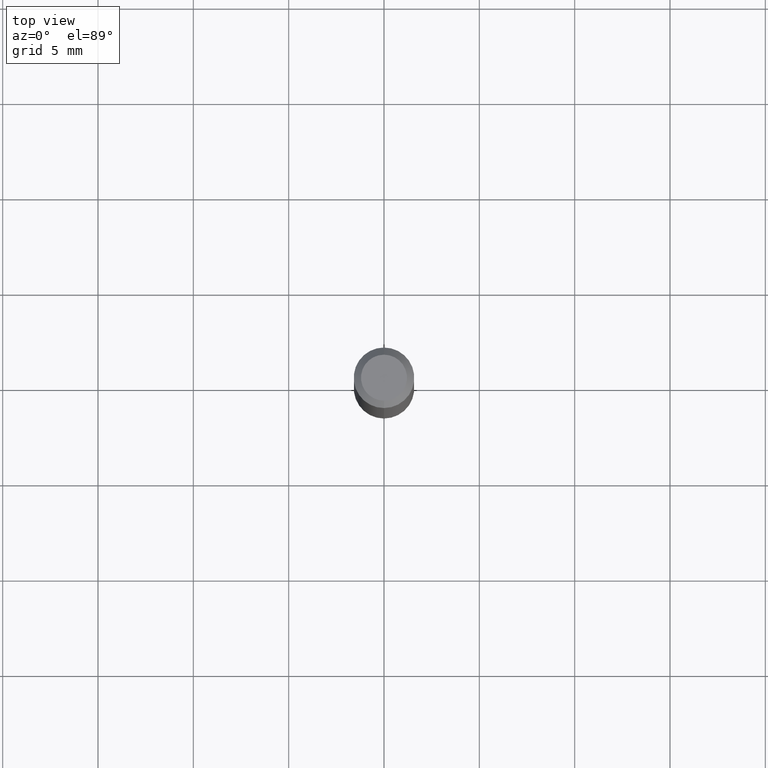
[diagram: clean part render]
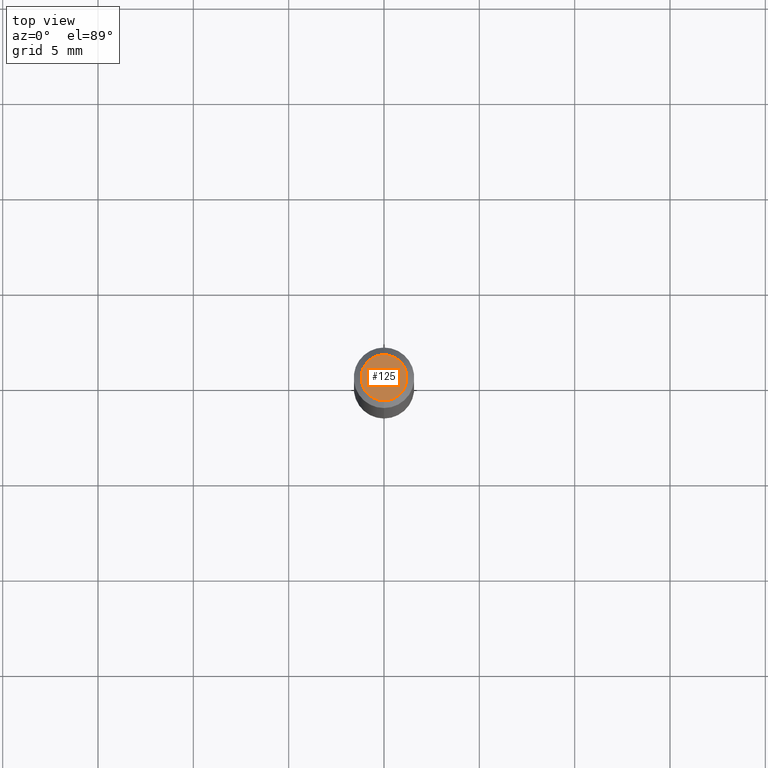
[diagram: same view with one face highlighted and labeled with its STEP entity id]
A machine part, top view. The second image highlights one B-rep face of the part: STEP entity #125.
In plain terms, the highlighted planar face has unit normal (0, -0, -1).
Its self-contained STEP definition (entity closure, byte-faithful):
#25 = PLANE ( 'NONE',  #211 ) ;
#31 = DIRECTION ( 'NONE',  ( -6.982962677686266711E-15, -1.000000000000000000, 3.491479337545140404E-15 ) ) ;
#32 = VERTEX_POINT ( 'NONE', #93 ) ;
#38 = ORIENTED_EDGE ( 'NONE', *, *, #205, .T. ) ;
#74 = CARTESIAN_POINT ( 'NONE',  ( 1.601791031799127782E-45, -2.286930457041170921E-31, -6.550032911405148752E-17 ) ) ;
#80 = DIRECTION ( 'NONE',  ( -2.445470203684064774E-29, 3.491479337545139615E-15, 1.000000000000000000 ) ) ;
#81 = EDGE_LOOP ( 'NONE', ( #38, #238 ) ) ;
#93 = CARTESIAN_POINT ( 'NONE',  ( -3.773273898774340269E-16, -0.04749999999999999362, 1.003449394193426408E-16 ) ) ;
#125 = ADVANCED_FACE ( 'NONE', ( #462 ), #25, .F. ) ;
#126 = CARTESIAN_POINT ( 'NONE',  ( 3.840629472727447874E-16, 0.04749999999999999362, -2.313455976474456528E-16 ) ) ;
#142 = AXIS2_PLACEMENT_3D ( 'NONE', #147, #156, #309 ) ;
#147 = CARTESIAN_POINT ( 'NONE',  ( 1.601791031799127782E-45, -2.286930457041170921E-31, -6.550032911405148752E-17 ) ) ;
#156 = DIRECTION ( 'NONE',  ( -2.445470203684064774E-29, 3.491479337545139615E-15, 1.000000000000000000 ) ) ;
#205 = EDGE_CURVE ( 'NONE', #444, #32, #390, .T. ) ;
#211 = AXIS2_PLACEMENT_3D ( 'NONE', #351, #497, #464 ) ;
#238 = ORIENTED_EDGE ( 'NONE', *, *, #298, .T. ) ;
#280 = CIRCLE ( 'NONE', #445, 0.04749999999999999362 ) ;
#298 = EDGE_CURVE ( 'NONE', #32, #444, #280, .T. ) ;
#309 = DIRECTION ( 'NONE',  ( -6.982962677686266711E-15, -1.000000000000000000, 3.491479337545140404E-15 ) ) ;
#351 = CARTESIAN_POINT ( 'NONE',  ( 3.316907271900976096E-16, 0.04749999999999999362, -1.985954330904198597E-16 ) ) ;
#390 = CIRCLE ( 'NONE', #142, 0.04749999999999999362 ) ;
#444 = VERTEX_POINT ( 'NONE', #126 ) ;
#445 = AXIS2_PLACEMENT_3D ( 'NONE', #74, #80, #31 ) ;
#462 = FACE_OUTER_BOUND ( 'NONE', #81, .T. ) ;
#464 = DIRECTION ( 'NONE',  ( 6.982962677686265922E-15, 1.000000000000000000, -3.491479337545139221E-15 ) ) ;
#497 = DIRECTION ( 'NONE',  ( 2.445470203684064774E-29, -3.491479337545139221E-15, -1.000000000000000000 ) ) ;